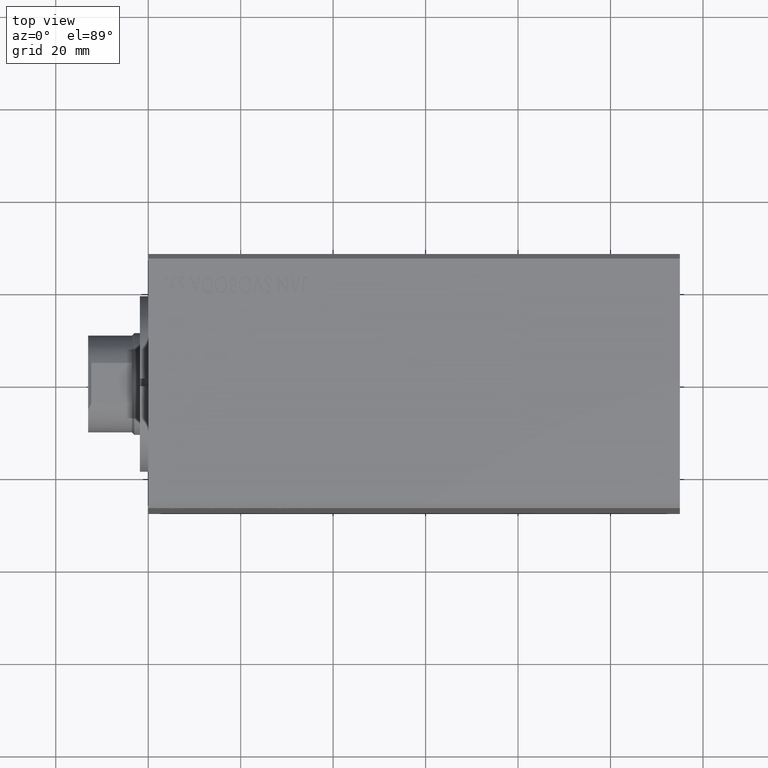
[diagram: clean part render]
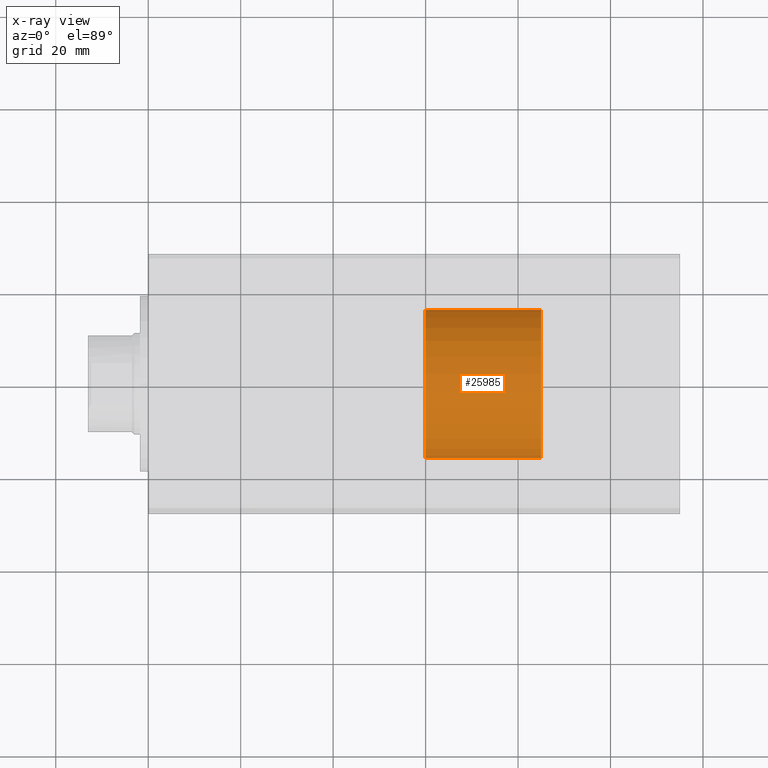
[diagram: x-ray — body ghosted, one internal face saturated and labeled with its STEP entity id]
A machine part, top view, then the same camera in x-ray: the body is ghosted and one INTERNAL B-rep face — a face not visible from any outside direction — is saturated and labeled: STEP entity #25985.
In plain terms, the highlighted cylindrical surface (partial cylindrical patch) has radius 16 mm, axis along (-1, 0, 0).
Its self-contained STEP definition (entity closure, byte-faithful):
#845 = CIRCLE ( 'NONE', #25827, 15.99999999999999289 ) ;
#1322 = CARTESIAN_POINT ( 'NONE',  ( 0.000000000000000000, -4.538231548585679784E-15, 25.00000000000000711 ) ) ;
#1851 = CARTESIAN_POINT ( 'NONE',  ( 0.000000000000000000, 0.000000000000000000, 0.000000000000000000 ) ) ;
#2911 = AXIS2_PLACEMENT_3D ( 'NONE', #34428, #23715, #3582 ) ;
#3582 = DIRECTION ( 'NONE',  ( 0.000000000000000000, -1.000000000000000000, 0.000000000000000000 ) ) ;
#5082 = ORIENTED_EDGE ( 'NONE', *, *, #41813, .T. ) ;
#5810 = AXIS2_PLACEMENT_3D ( 'NONE', #1851, #32691, #6077 ) ;
#6077 = DIRECTION ( 'NONE',  ( 0.000000000000000000, -1.000000000000000000, -1.815292619434271736E-16 ) ) ;
#6571 = CARTESIAN_POINT ( 'NONE',  ( 0.000000000000000000, -16.00000000000000000, -2.904468191094834778E-15 ) ) ;
#10099 = FACE_OUTER_BOUND ( 'NONE', #37725, .T. ) ;
#10851 = VECTOR ( 'NONE', #16507, 1000.000000000000000 ) ;
#11871 = VERTEX_POINT ( 'NONE', #6571 ) ;
#13333 = DIRECTION ( 'NONE',  ( -0.000000000000000000, -1.815292619434271736E-16, 1.000000000000000000 ) ) ;
#15848 = DIRECTION ( 'NONE',  ( 0.000000000000000000, -1.000000000000000000, -2.168404344971009854E-16 ) ) ;
#16507 = DIRECTION ( 'NONE',  ( -0.000000000000000000, -1.815292619434271736E-16, 1.000000000000000000 ) ) ;
#17237 = CIRCLE ( 'NONE', #5810, 16.00000000000000000 ) ;
#19288 = VERTEX_POINT ( 'NONE', #30885 ) ;
#20573 = CYLINDRICAL_SURFACE ( 'NONE', #2911, 15.99999999999999645 ) ;
#20694 = CARTESIAN_POINT ( 'NONE',  ( 1.959434878635764737E-15, 15.99999999999997868, 98.00000000000000000 ) ) ;
#23715 = DIRECTION ( 'NONE',  ( -0.000000000000000000, -1.815292619434271736E-16, 1.000000000000000000 ) ) ;
#23874 = ORIENTED_EDGE ( 'NONE', *, *, #33949, .F. ) ;
#25827 = AXIS2_PLACEMENT_3D ( 'NONE', #1322, #29233, #15848 ) ;
#25985 = ADVANCED_FACE ( 'NONE', ( #10099 ), #20573, .T. ) ;
#26546 = LINE ( 'NONE', #40174, #10851 ) ;
#27383 = LINE ( 'NONE', #20694, #29929 ) ;
#28464 = EDGE_CURVE ( 'NONE', #19288, #30270, #845, .T. ) ;
#29233 = DIRECTION ( 'NONE',  ( -0.000000000000000000, -1.815292619434271736E-16, 1.000000000000000000 ) ) ;
#29929 = VECTOR ( 'NONE', #13333, 1000.000000000000000 ) ;
#30270 = VERTEX_POINT ( 'NONE', #36671 ) ;
#30885 = CARTESIAN_POINT ( 'NONE',  ( 1.959434878635764343E-15, 15.99999999999998934, 25.00000000000001066 ) ) ;
#31959 = ORIENTED_EDGE ( 'NONE', *, *, #43450, .T. ) ;
#32691 = DIRECTION ( 'NONE',  ( -0.000000000000000000, -1.815292619434271736E-16, 1.000000000000000000 ) ) ;
#33949 = EDGE_CURVE ( 'NONE', #35174, #19288, #27383, .T. ) ;
#34428 = CARTESIAN_POINT ( 'NONE',  ( 0.000000000000000000, -1.778986767045586311E-14, 98.00000000000000000 ) ) ;
#35174 = VERTEX_POINT ( 'NONE', #37202 ) ;
#36671 = CARTESIAN_POINT ( 'NONE',  ( 0.000000000000000000, -15.99999999999999645, 25.00000000000000355 ) ) ;
#37202 = CARTESIAN_POINT ( 'NONE',  ( 1.959434878635765526E-15, 16.00000000000000000, 2.904468191094835172E-15 ) ) ;
#37725 = EDGE_LOOP ( 'NONE', ( #23874, #5082, #31959, #43872 ) ) ;
#40174 = CARTESIAN_POINT ( 'NONE',  ( 0.000000000000000000, -16.00000000000001421, 98.00000000000000000 ) ) ;
#41813 = EDGE_CURVE ( 'NONE', #35174, #11871, #17237, .T. ) ;
#43450 = EDGE_CURVE ( 'NONE', #11871, #30270, #26546, .T. ) ;
#43872 = ORIENTED_EDGE ( 'NONE', *, *, #28464, .F. ) ;